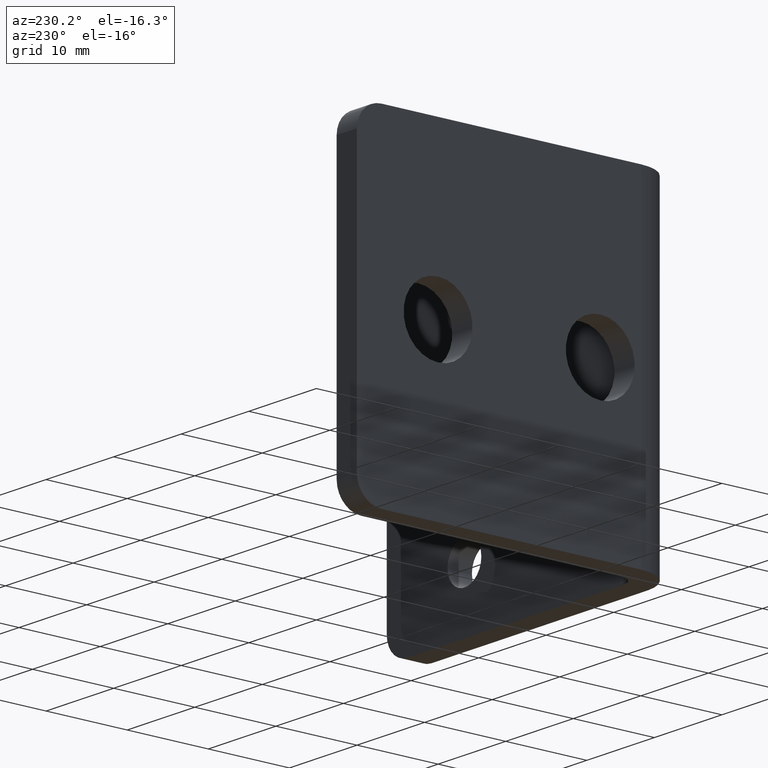
[diagram: clean part render]
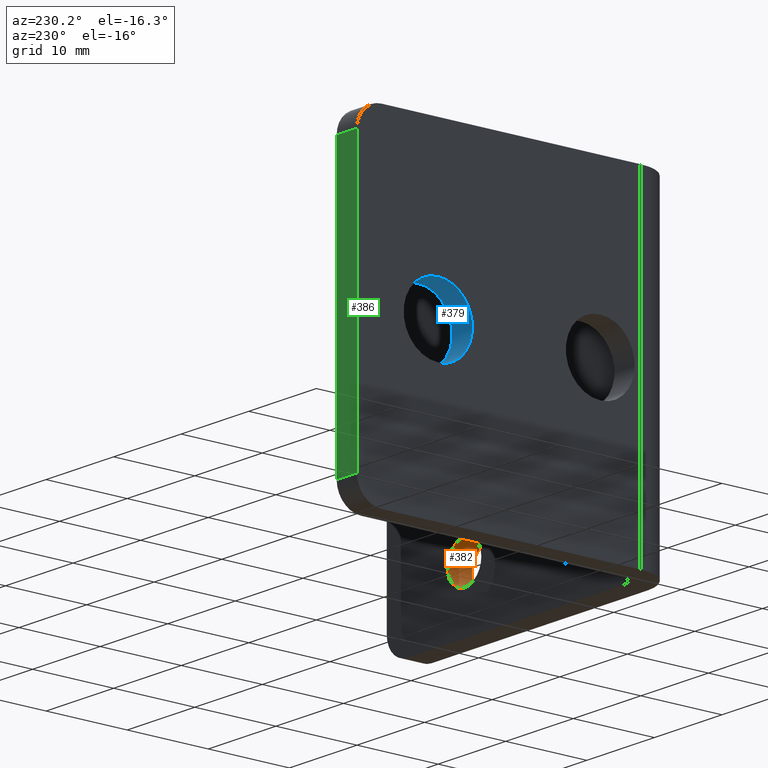
[diagram: same view with three faces highlighted in distinct colors, each labeled with its STEP entity id]
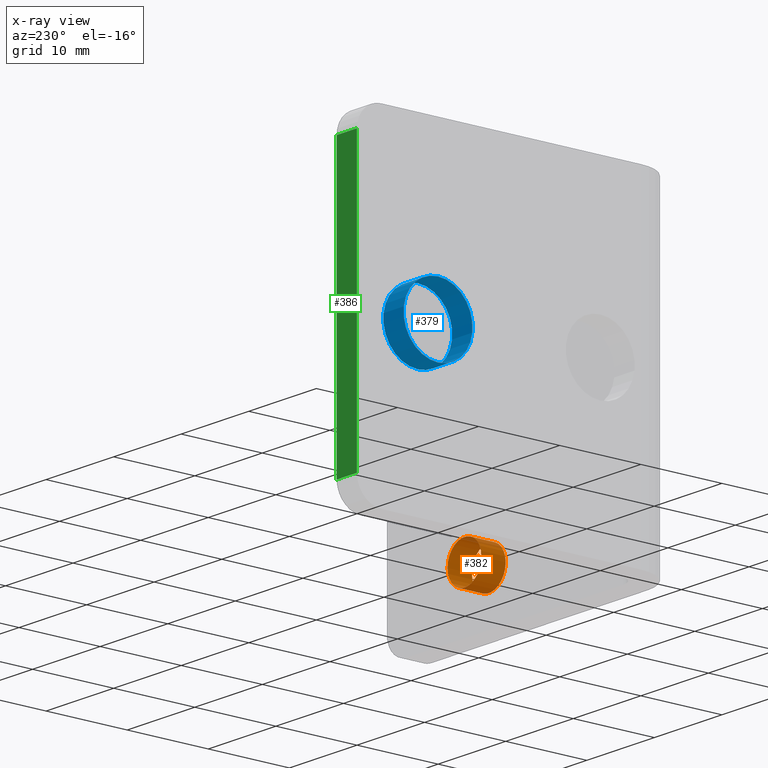
[diagram: x-ray of the same camera — body ghosted, the three highlighted faces saturated]
A machine part, auxiliary view with three faces highlighted in distinct colors.
The next image is the same camera in x-ray (body ghosted, the three faces saturated) — at least one of them is partly hidden behind the body in this view.
Their STEP definitions:

[orange] entity #382 — the highlighted cylindrical surface (bore or boss wall) has radius 2.5 mm, axis along (0, 1, 0).
#48=FACE_OUTER_BOUND('',#74,.T.);
#74=EDGE_LOOP('',(#315,#316,#317,#318));
#114=LINE('',#664,#146);
#146=VECTOR('',#545,2.5);
#155=CIRCLE('',#421,2.5);
#166=CIRCLE('',#443,2.5);
#181=VERTEX_POINT('',#600);
#202=VERTEX_POINT('',#662);
#215=EDGE_CURVE('',#181,#181,#155,.T.);
#245=EDGE_CURVE('',#202,#202,#166,.T.);
#246=EDGE_CURVE('',#202,#181,#114,.T.);
#315=ORIENTED_EDGE('',*,*,#245,.F.);
#316=ORIENTED_EDGE('',*,*,#246,.T.);
#317=ORIENTED_EDGE('',*,*,#215,.F.);
#318=ORIENTED_EDGE('',*,*,#246,.F.);
#366=CYLINDRICAL_SURFACE('',#442,2.5);
#382=ADVANCED_FACE('',(#48),#366,.F.);
#421=AXIS2_PLACEMENT_3D('',#601,#480,#481);
#442=AXIS2_PLACEMENT_3D('',#661,#541,#542);
#443=AXIS2_PLACEMENT_3D('',#663,#543,#544);
#480=DIRECTION('center_axis',(0.,1.,0.));
#481=DIRECTION('ref_axis',(1.,0.,0.));
#541=DIRECTION('center_axis',(0.,1.,0.));
#542=DIRECTION('ref_axis',(1.,0.,0.));
#543=DIRECTION('center_axis',(0.,-1.,0.));
#544=DIRECTION('ref_axis',(1.,0.,0.));
#545=DIRECTION('',(0.,-1.,0.));
#600=CARTESIAN_POINT('',(26.,0.,-12.5));
#601=CARTESIAN_POINT('Origin',(28.5,0.,-12.5));
#661=CARTESIAN_POINT('Origin',(28.5,1.5,-12.5));
#662=CARTESIAN_POINT('',(26.,3.,-12.5));
#663=CARTESIAN_POINT('Origin',(28.5,3.,-12.5));
#664=CARTESIAN_POINT('',(26.,1.5,-12.5));

[blue] entity #379 — the highlighted cylindrical surface (bore or boss wall) has radius 4.25 mm, axis along (1, 0, -0).
#45=FACE_OUTER_BOUND('',#71,.T.);
#71=EDGE_LOOP('',(#303,#304,#305,#306));
#111=LINE('',#651,#143);
#143=VECTOR('',#528,4.25);
#160=CIRCLE('',#431,4.25);
#163=CIRCLE('',#437,4.25);
#194=VERTEX_POINT('',#635);
#199=VERTEX_POINT('',#650);
#232=EDGE_CURVE('',#194,#194,#160,.T.);
#239=EDGE_CURVE('',#194,#199,#111,.T.);
#240=EDGE_CURVE('',#199,#199,#163,.T.);
#303=ORIENTED_EDGE('',*,*,#232,.F.);
#304=ORIENTED_EDGE('',*,*,#239,.T.);
#305=ORIENTED_EDGE('',*,*,#240,.F.);
#306=ORIENTED_EDGE('',*,*,#239,.F.);
#363=CYLINDRICAL_SURFACE('',#436,4.25);
#379=ADVANCED_FACE('',(#45),#363,.F.);
#431=AXIS2_PLACEMENT_3D('',#636,#512,#513);
#436=AXIS2_PLACEMENT_3D('',#649,#526,#527);
#437=AXIS2_PLACEMENT_3D('',#652,#529,#530);
#512=DIRECTION('center_axis',(-1.,-5.00406247868089E-17,1.66533453693773E-16));
#513=DIRECTION('ref_axis',(-1.66533453693774E-16,1.23359664272335E-48,-1.));
#526=DIRECTION('center_axis',(1.,5.00406247868089E-17,-1.66533453693773E-16));
#527=DIRECTION('ref_axis',(-1.66533453693774E-16,1.23359664272335E-48,-1.));
#528=DIRECTION('',(-1.,-5.00406247868089E-17,1.66533453693774E-16));
#529=DIRECTION('center_axis',(1.,5.0040624786809E-17,-1.66533453693773E-16));
#530=DIRECTION('ref_axis',(-1.66533453693774E-16,1.23359664272335E-48,-1.));
#635=CARTESIAN_POINT('',(3.,30.,4.25));
#636=CARTESIAN_POINT('Origin',(3.,30.,0.));
#649=CARTESIAN_POINT('Origin',(1.5,30.,2.4980018054066E-16));
#650=CARTESIAN_POINT('',(2.77555756156289E-15,30.,4.25));
#651=CARTESIAN_POINT('',(1.5,30.,4.25));
#652=CARTESIAN_POINT('Origin',(1.94289029309402E-15,30.,4.9960036108132E-16));

[green] entity #386 — the highlighted planar face has unit normal (-0, 1, 0).
#31=PLANE('',#451);
#52=FACE_OUTER_BOUND('',#78,.T.);
#78=EDGE_LOOP('',(#331,#332,#333,#334));
#99=LINE('',#617,#131);
#104=LINE('',#629,#136);
#108=LINE('',#644,#140);
#116=LINE('',#674,#148);
#131=VECTOR('',#496,10.);
#136=VECTOR('',#507,10.);
#140=VECTOR('',#521,10.);
#148=VECTOR('',#563,10.);
#186=VERTEX_POINT('',#614);
#187=VERTEX_POINT('',#616);
#191=VERTEX_POINT('',#628);
#196=VERTEX_POINT('',#640);
#222=EDGE_CURVE('',#186,#187,#99,.T.);
#228=EDGE_CURVE('',#187,#191,#104,.T.);
#236=EDGE_CURVE('',#191,#196,#108,.T.);
#252=EDGE_CURVE('',#186,#196,#116,.T.);
#331=ORIENTED_EDGE('',*,*,#222,.F.);
#332=ORIENTED_EDGE('',*,*,#252,.T.);
#333=ORIENTED_EDGE('',*,*,#236,.F.);
#334=ORIENTED_EDGE('',*,*,#228,.F.);
#386=ADVANCED_FACE('',(#52),#31,.T.);
#451=AXIS2_PLACEMENT_3D('',#673,#561,#562);
#496=DIRECTION('',(1.,6.12323399573677E-17,-1.66533453693773E-16));
#507=DIRECTION('',(1.66533453693774E-16,-1.66533453693773E-16,1.));
#521=DIRECTION('',(-1.,-6.12323399573677E-17,1.66533453693773E-16));
#561=DIRECTION('center_axis',(-6.12323399573676E-17,1.,1.66533453693773E-16));
#562=DIRECTION('ref_axis',(1.66533453693774E-16,-1.66533453693773E-16,1.));
#563=DIRECTION('',(1.66533453693774E-16,-1.66533453693773E-16,1.));
#614=CARTESIAN_POINT('',(-2.21181068511011E-15,40.,-17.));
#616=CARTESIAN_POINT('',(3.,40.,-17.));
#617=CARTESIAN_POINT('',(3.,40.,-17.));
#628=CARTESIAN_POINT('',(3.,40.,17.));
#629=CARTESIAN_POINT('',(3.,40.,-20.));
#640=CARTESIAN_POINT('',(3.4503267404782E-15,40.,17.));
#644=CARTESIAN_POINT('',(3.,40.,17.));
#673=CARTESIAN_POINT('Origin',(3.,40.,-20.));
#674=CARTESIAN_POINT('',(-2.71141104619143E-15,40.,-20.));